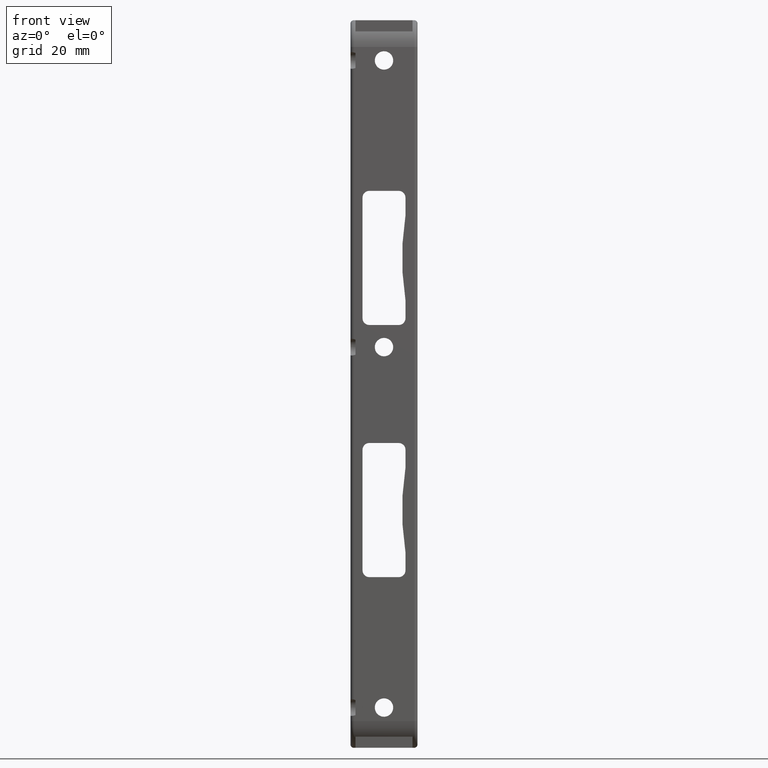
[diagram: clean part render]
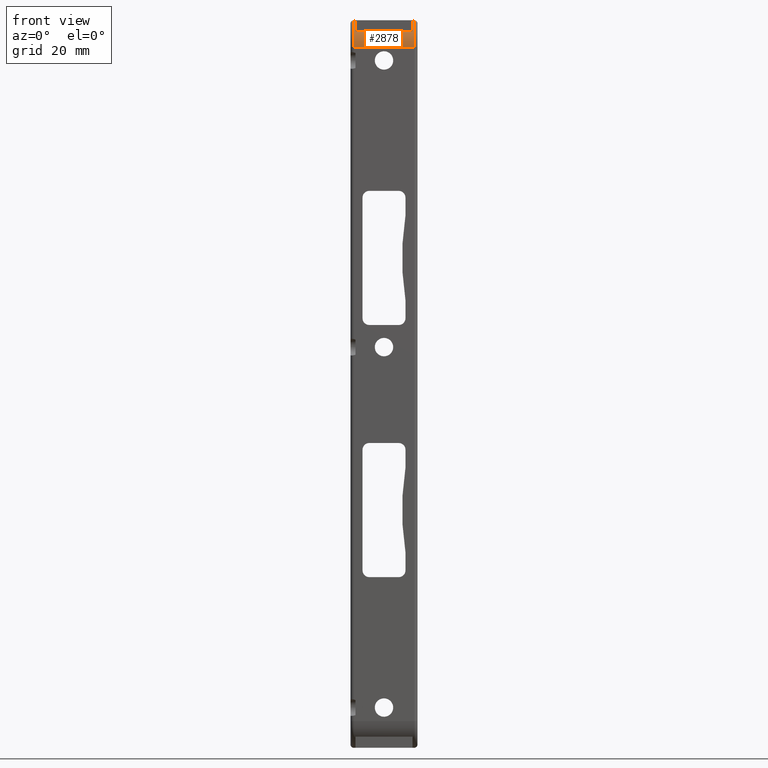
[diagram: same view with one face highlighted and labeled with its STEP entity id]
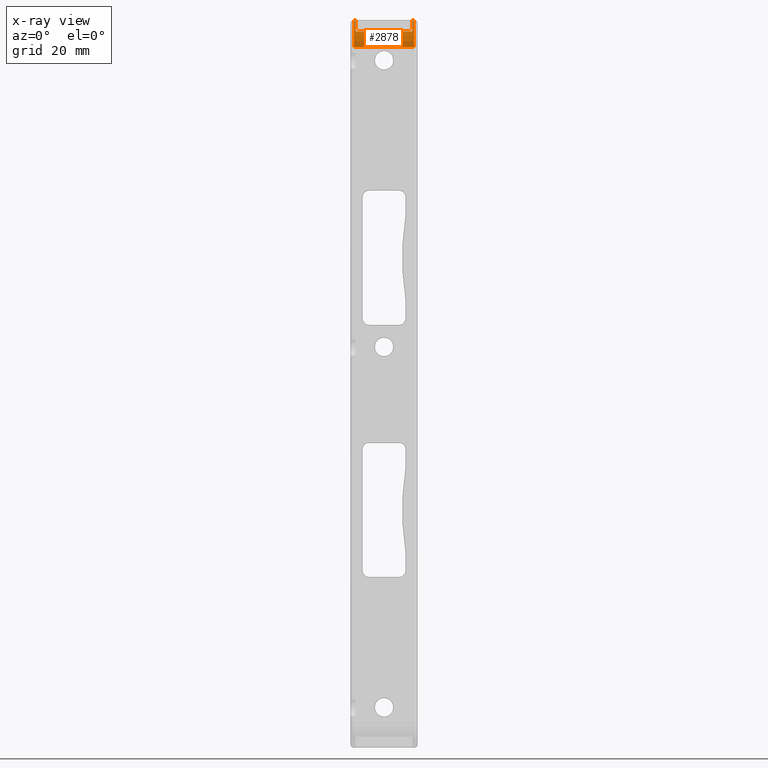
[diagram: x-ray of the same camera — body ghosted, the highlighted face saturated]
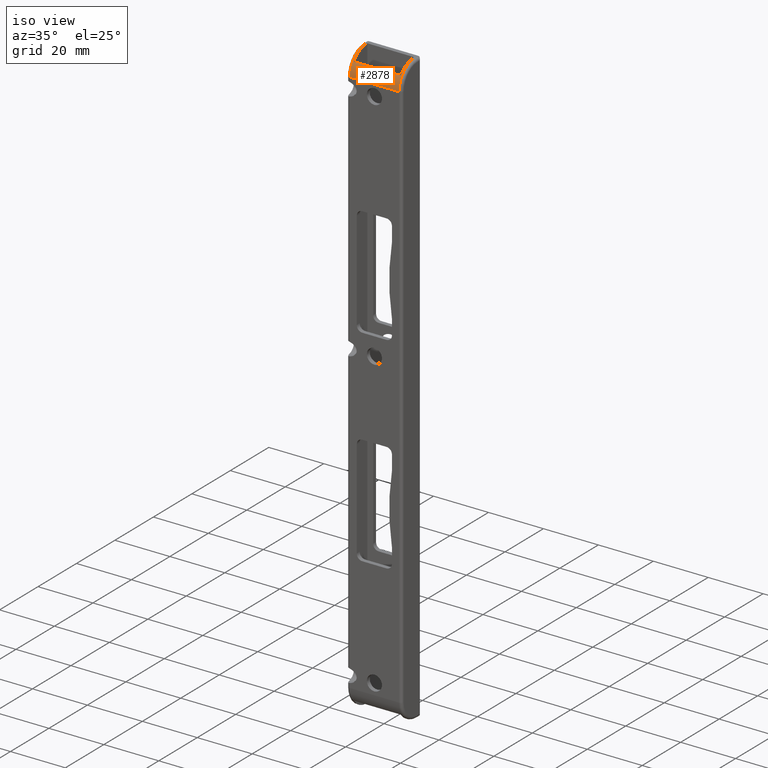
[diagram: same view with one face highlighted and labeled with its STEP entity id]
A machine part, front view. The second image highlights one B-rep face of the part: STEP entity #2878.
The next image is the same camera in x-ray: the body ghosted, the highlighted face saturated — about 0% of this face is hidden behind the body in this view.
A second angle (iso view) of the same face is appended — the face is thin or edge-on in the first view.
In plain terms, the highlighted cylindrical surface (edge-blend (fillet) strip) has radius 8 mm, axis along (-1, 0, 0).
Its self-contained STEP definition (entity closure, byte-faithful):
#34 = DIRECTION ( 'NONE',  ( 1.000000000000000000, 1.734723475976793782E-16, 0.000000000000000000 ) ) ;
#121 = CARTESIAN_POINT ( 'NONE',  ( 8.999999999999998224, 3.000000000000000888, 100.5000000000000000 ) ) ;
#129 = ORIENTED_EDGE ( 'NONE', *, *, #3117, .F. ) ;
#155 = EDGE_LOOP ( 'NONE', ( #1587, #1138, #1949, #1171, #129, #1867, #876, #2377 ) ) ;
#212 = AXIS2_PLACEMENT_3D ( 'NONE', #2757, #1086, #2067 ) ;
#235 = DIRECTION ( 'NONE',  ( -1.000000000000000000, 1.328655806570404533E-30, -0.000000000000000000 ) ) ;
#303 = EDGE_CURVE ( 'NONE', #408, #1204, #2566, .T. ) ;
#357 = CARTESIAN_POINT ( 'NONE',  ( 8.499999999999998224, 3.000000000000000888, 100.5000000000000000 ) ) ;
#408 = VERTEX_POINT ( 'NONE', #1169 ) ;
#423 = DIRECTION ( 'NONE',  ( 1.000000000000000000, -1.328655806570404533E-30, 0.000000000000000000 ) ) ;
#439 = CIRCLE ( 'NONE', #2739, 8.000000000000000000 ) ;
#504 = CARTESIAN_POINT ( 'NONE',  ( -9.000000000000001776, 3.000000000000000888, 108.5000000000000000 ) ) ;
#527 = DIRECTION ( 'NONE',  ( -2.168404344971008868E-16, 1.000000000000000000, 0.000000000000000000 ) ) ;
#582 = CARTESIAN_POINT ( 'NONE',  ( -9.000000000000000000, -4.999999999999999112, 100.5000000000000000 ) ) ;
#647 = EDGE_CURVE ( 'NONE', #2952, #888, #1927, .T. ) ;
#839 = DIRECTION ( 'NONE',  ( 2.168404344971008868E-16, -1.000000000000000000, 0.000000000000000000 ) ) ;
#876 = ORIENTED_EDGE ( 'NONE', *, *, #2411, .F. ) ;
#888 = VERTEX_POINT ( 'NONE', #582 ) ;
#940 = CARTESIAN_POINT ( 'NONE',  ( 9.999999999999998224, 3.000000000000000888, 108.5000000000000000 ) ) ;
#1078 = VERTEX_POINT ( 'NONE', #2538 ) ;
#1086 = DIRECTION ( 'NONE',  ( -1.000000000000000000, 1.328655806570404533E-30, 0.000000000000000000 ) ) ;
#1118 = DIRECTION ( 'NONE',  ( -1.000000000000000000, 1.328655806570404533E-30, 0.000000000000000000 ) ) ;
#1138 = ORIENTED_EDGE ( 'NONE', *, *, #2146, .T. ) ;
#1166 = AXIS2_PLACEMENT_3D ( 'NONE', #357, #3080, #839 ) ;
#1169 = CARTESIAN_POINT ( 'NONE',  ( 8.500000000000000000, -3.499999999999999556, 105.1636895265444167 ) ) ;
#1171 = ORIENTED_EDGE ( 'NONE', *, *, #303, .F. ) ;
#1204 = VERTEX_POINT ( 'NONE', #2073 ) ;
#1229 = DIRECTION ( 'NONE',  ( 1.000000000000000000, -1.328655806570404533E-30, -0.000000000000000000 ) ) ;
#1316 = VECTOR ( 'NONE', #1977, 1000.000000000000000 ) ;
#1400 = LINE ( 'NONE', #940, #1316 ) ;
#1587 = ORIENTED_EDGE ( 'NONE', *, *, #2255, .F. ) ;
#1724 = LINE ( 'NONE', #2725, #2574 ) ;
#1736 = LINE ( 'NONE', #2178, #1826 ) ;
#1757 = CYLINDRICAL_SURFACE ( 'NONE', #212, 8.000000000000007105 ) ;
#1826 = VECTOR ( 'NONE', #235, 1000.000000000000000 ) ;
#1843 = EDGE_CURVE ( 'NONE', #1204, #1078, #3141, .T. ) ;
#1867 = ORIENTED_EDGE ( 'NONE', *, *, #3139, .F. ) ;
#1927 = CIRCLE ( 'NONE', #2986, 8.000000000000000000 ) ;
#1928 = AXIS2_PLACEMENT_3D ( 'NONE', #121, #1118, #2597 ) ;
#1949 = ORIENTED_EDGE ( 'NONE', *, *, #1843, .F. ) ;
#1977 = DIRECTION ( 'NONE',  ( 1.000000000000000000, -1.328655806570404533E-30, 0.000000000000000000 ) ) ;
#2067 = DIRECTION ( 'NONE',  ( 0.000000000000000000, 0.000000000000000000, 1.000000000000000000 ) ) ;
#2073 = CARTESIAN_POINT ( 'NONE',  ( 8.499999999999998224, 3.000000000000000888, 108.5000000000000000 ) ) ;
#2146 = EDGE_CURVE ( 'NONE', #3112, #1078, #2663, .T. ) ;
#2178 = CARTESIAN_POINT ( 'NONE',  ( -10.00000000000000000, -4.999999999999999112, 100.5000000000000000 ) ) ;
#2211 = CARTESIAN_POINT ( 'NONE',  ( -8.500000000000001776, 3.000000000000000888, 100.5000000000000000 ) ) ;
#2255 = EDGE_CURVE ( 'NONE', #3112, #888, #1736, .T. ) ;
#2377 = ORIENTED_EDGE ( 'NONE', *, *, #647, .T. ) ;
#2411 = EDGE_CURVE ( 'NONE', #2952, #3150, #1400, .T. ) ;
#2419 = DIRECTION ( 'NONE',  ( -2.168404344971008868E-16, 1.000000000000000000, 0.000000000000000000 ) ) ;
#2427 = CARTESIAN_POINT ( 'NONE',  ( 9.999999999999998224, 3.000000000000000888, 108.5000000000000000 ) ) ;
#2471 = DIRECTION ( 'NONE',  ( 1.000000000000000000, 2.478176394252563885E-16, 0.000000000000000000 ) ) ;
#2484 = FACE_OUTER_BOUND ( 'NONE', #155, .T. ) ;
#2538 = CARTESIAN_POINT ( 'NONE',  ( 8.999999999999998224, 3.000000000000000888, 108.5000000000000000 ) ) ;
#2566 = CIRCLE ( 'NONE', #1166, 8.000000000000000000 ) ;
#2574 = VECTOR ( 'NONE', #1229, 1000.000000000000000 ) ;
#2597 = DIRECTION ( 'NONE',  ( 0.000000000000000000, 0.000000000000000000, 1.000000000000000000 ) ) ;
#2651 = VERTEX_POINT ( 'NONE', #2897 ) ;
#2663 = CIRCLE ( 'NONE', #1928, 8.000000000000007105 ) ;
#2712 = VECTOR ( 'NONE', #423, 1000.000000000000000 ) ;
#2725 = CARTESIAN_POINT ( 'NONE',  ( -8.500000000000000000, -3.499999999999999556, 105.1636895265444167 ) ) ;
#2739 = AXIS2_PLACEMENT_3D ( 'NONE', #2211, #2471, #2419 ) ;
#2757 = CARTESIAN_POINT ( 'NONE',  ( 0.000000000000000000, 3.000000000000000888, 100.5000000000000000 ) ) ;
#2878 = ADVANCED_FACE ( 'NONE', ( #2484 ), #1757, .T. ) ;
#2897 = CARTESIAN_POINT ( 'NONE',  ( -8.500000000000000000, -3.499999999999999556, 105.1636895265444167 ) ) ;
#2952 = VERTEX_POINT ( 'NONE', #504 ) ;
#2986 = AXIS2_PLACEMENT_3D ( 'NONE', #3014, #34, #527 ) ;
#2996 = CARTESIAN_POINT ( 'NONE',  ( -8.500000000000001776, 3.000000000000000888, 108.5000000000000000 ) ) ;
#3014 = CARTESIAN_POINT ( 'NONE',  ( -9.000000000000001776, 3.000000000000000888, 100.5000000000000000 ) ) ;
#3080 = DIRECTION ( 'NONE',  ( -1.000000000000000000, -2.478176394252563885E-16, 0.000000000000000000 ) ) ;
#3112 = VERTEX_POINT ( 'NONE', #3242 ) ;
#3117 = EDGE_CURVE ( 'NONE', #2651, #408, #1724, .T. ) ;
#3139 = EDGE_CURVE ( 'NONE', #3150, #2651, #439, .T. ) ;
#3141 = LINE ( 'NONE', #2427, #2712 ) ;
#3150 = VERTEX_POINT ( 'NONE', #2996 ) ;
#3242 = CARTESIAN_POINT ( 'NONE',  ( 8.999999999999996447, -4.999999999999999112, 100.5000000000000000 ) ) ;